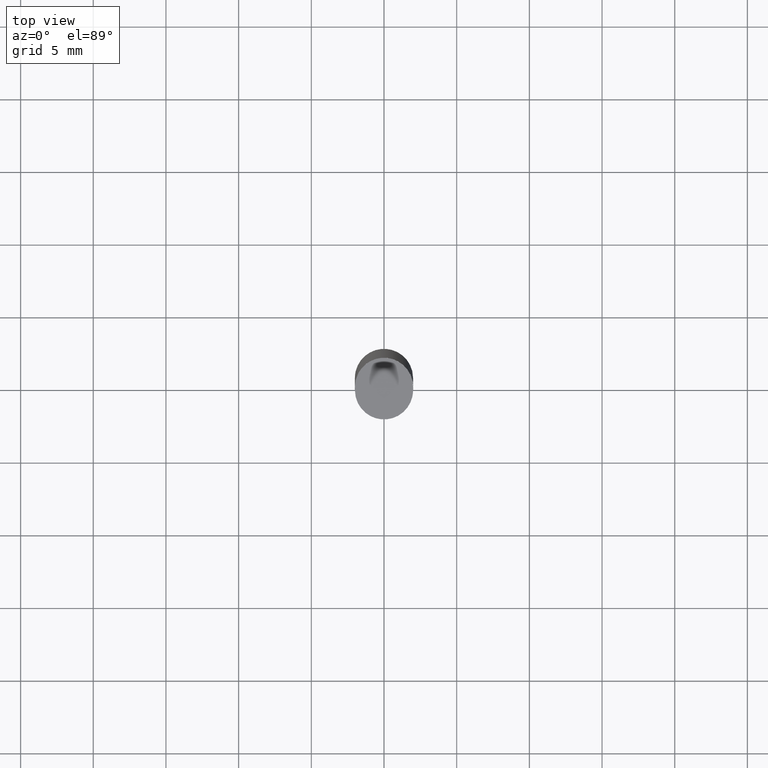
[diagram: clean part render]
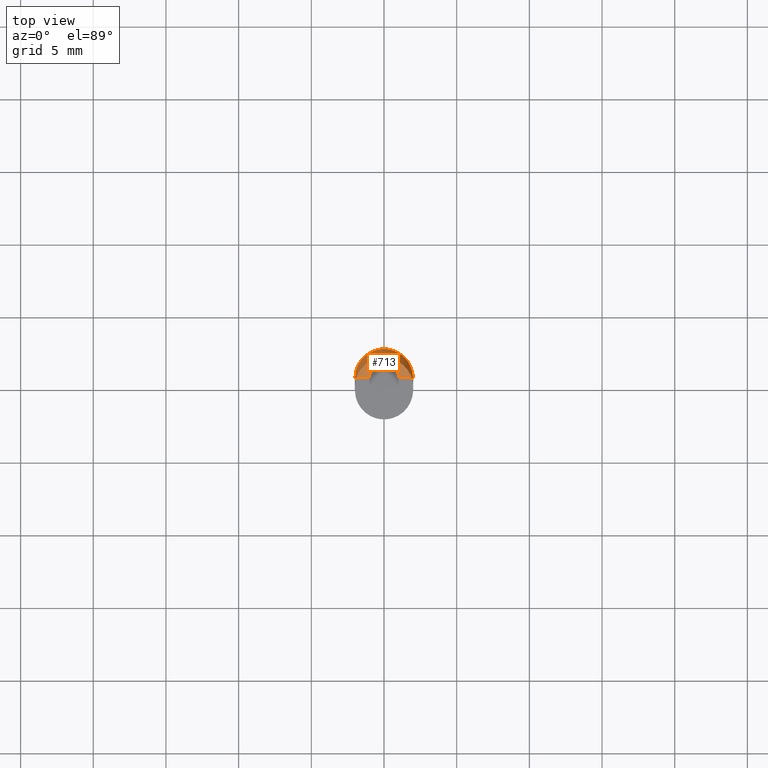
[diagram: same view with one face highlighted and labeled with its STEP entity id]
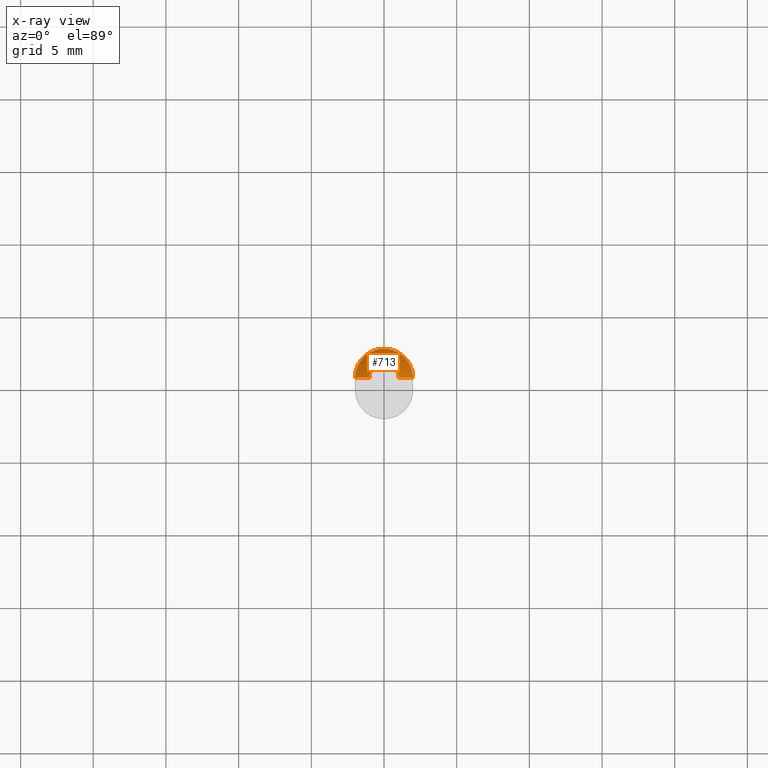
[diagram: x-ray of the same camera — body ghosted, the highlighted face saturated]
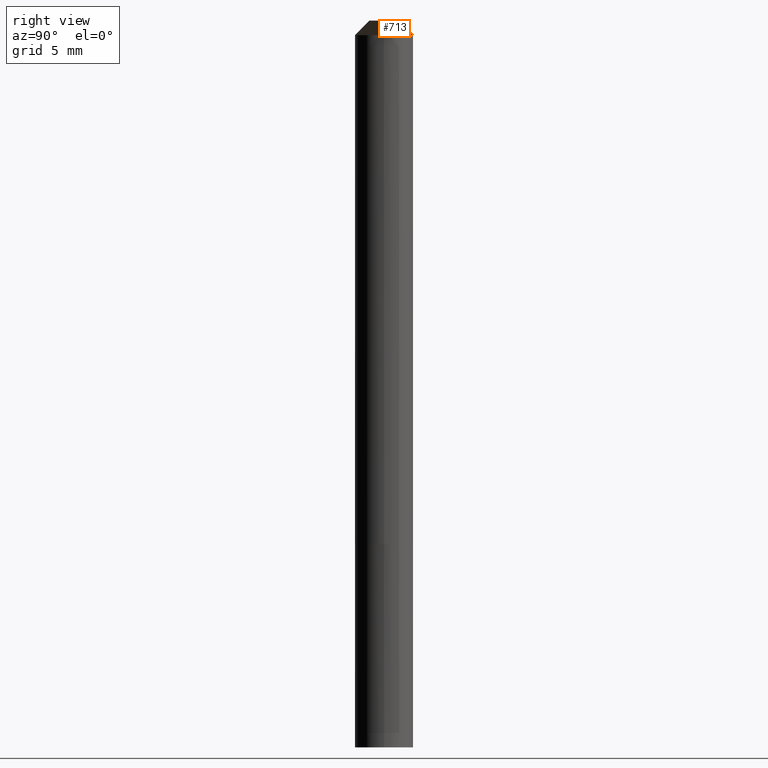
[diagram: same view with one face highlighted and labeled with its STEP entity id]
A machine part, top view. The second image highlights one B-rep face of the part: STEP entity #713.
The next image is the same camera in x-ray: the body ghosted, the highlighted face saturated — about 0% of this face is hidden behind the body in this view.
A second angle (right view) of the same face is appended — the face is thin or edge-on in the first view.
In plain terms, the highlighted face is a freeform B-spline surface patch.
Its self-contained STEP definition (entity closure, byte-faithful):
#528=CARTESIAN_POINT('',(2.0,0.0,35.0));
#529=CARTESIAN_POINT('',(2.0,2.0,35.0));
#530=CARTESIAN_POINT('',(0.0,2.0,35.0));
#531=CARTESIAN_POINT('',(-2.0,2.0,35.0));
#532=CARTESIAN_POINT('',(-2.0,0.0,35.0));
#533=CARTESIAN_POINT('',(1.0,0.0,36.0));
#534=CARTESIAN_POINT('',(1.0,1.0,36.0));
#535=CARTESIAN_POINT('',(0.0,1.0,36.0));
#536=CARTESIAN_POINT('',(-1.0,1.0,36.0));
#537=CARTESIAN_POINT('',(-1.0,0.0,36.0));
#694=(
BOUNDED_SURFACE()
B_SPLINE_SURFACE(1,2,(
(#528,#529,#530,#531,#532),
(#533,#534,#535,#536,#537)
), .UNSPECIFIED.,.F.,.F.,.F.)
B_SPLINE_SURFACE_WITH_KNOTS((2,2),(3,2,3),(
0.0,1.0),(
0.0,0.5,1.0), .UNSPECIFIED.)
GEOMETRIC_REPRESENTATION_ITEM()
RATIONAL_B_SPLINE_SURFACE(((1.0,0.707106781187,1.0,0.707106781187,1.0),
(1.0,0.707106781187,1.0,0.707106781187,1.0)
))
REPRESENTATION_ITEM('')
SURFACE()
);
#695=(
BOUNDED_CURVE()
B_SPLINE_CURVE(2,(#532,#531,#530,#529,#528),.UNSPECIFIED.,.F.,.F.)
B_SPLINE_CURVE_WITH_KNOTS((3,2,3),
(0.0,0.5,1.0),.UNSPECIFIED.)
CURVE()
GEOMETRIC_REPRESENTATION_ITEM()
RATIONAL_B_SPLINE_CURVE((1.0,0.707106781187,1.0,0.707106781187,1.0))
REPRESENTATION_ITEM('')
);
#696=(
BOUNDED_CURVE()
B_SPLINE_CURVE(1,(#528,#533),.UNSPECIFIED.,.F.,.F.)
B_SPLINE_CURVE_WITH_KNOTS((2,2),
(0.0,1.0),.UNSPECIFIED.)
CURVE()
GEOMETRIC_REPRESENTATION_ITEM()
RATIONAL_B_SPLINE_CURVE((1.0,1.0))
REPRESENTATION_ITEM('')
);
#697=(
BOUNDED_CURVE()
B_SPLINE_CURVE(2,(#533,#534,#535,#536,#537),.UNSPECIFIED.,.F.,.F.)
B_SPLINE_CURVE_WITH_KNOTS((3,2,3),
(0.0,0.5,1.0),.UNSPECIFIED.)
CURVE()
GEOMETRIC_REPRESENTATION_ITEM()
RATIONAL_B_SPLINE_CURVE((1.0,0.707106781187,1.0,0.707106781187,1.0))
REPRESENTATION_ITEM('')
);
#698=(
BOUNDED_CURVE()
B_SPLINE_CURVE(1,(#537,#532),.UNSPECIFIED.,.F.,.F.)
B_SPLINE_CURVE_WITH_KNOTS((2,2),
(0.0,1.0),.UNSPECIFIED.)
CURVE()
GEOMETRIC_REPRESENTATION_ITEM()
RATIONAL_B_SPLINE_CURVE((1.0,1.0))
REPRESENTATION_ITEM('')
);
#699=VERTEX_POINT('',#528);
#700=VERTEX_POINT('',#532);
#701=VERTEX_POINT('',#533);
#702=VERTEX_POINT('',#537);
#703=EDGE_CURVE('',#700,#699,#695,.T.);
#704=EDGE_CURVE('',#699,#701,#696,.T.);
#705=EDGE_CURVE('',#701,#702,#697,.T.);
#706=EDGE_CURVE('',#702,#700,#698,.T.);
#707=ORIENTED_EDGE('',*,*,#703,.T.);
#708=ORIENTED_EDGE('',*,*,#704,.T.);
#709=ORIENTED_EDGE('',*,*,#705,.T.);
#710=ORIENTED_EDGE('',*,*,#706,.T.);
#711=EDGE_LOOP('',(#707,#708,#709,#710));
#712=FACE_OUTER_BOUND('',#711,.T.);
#713=ADVANCED_FACE('',(#712),#694,.T.);